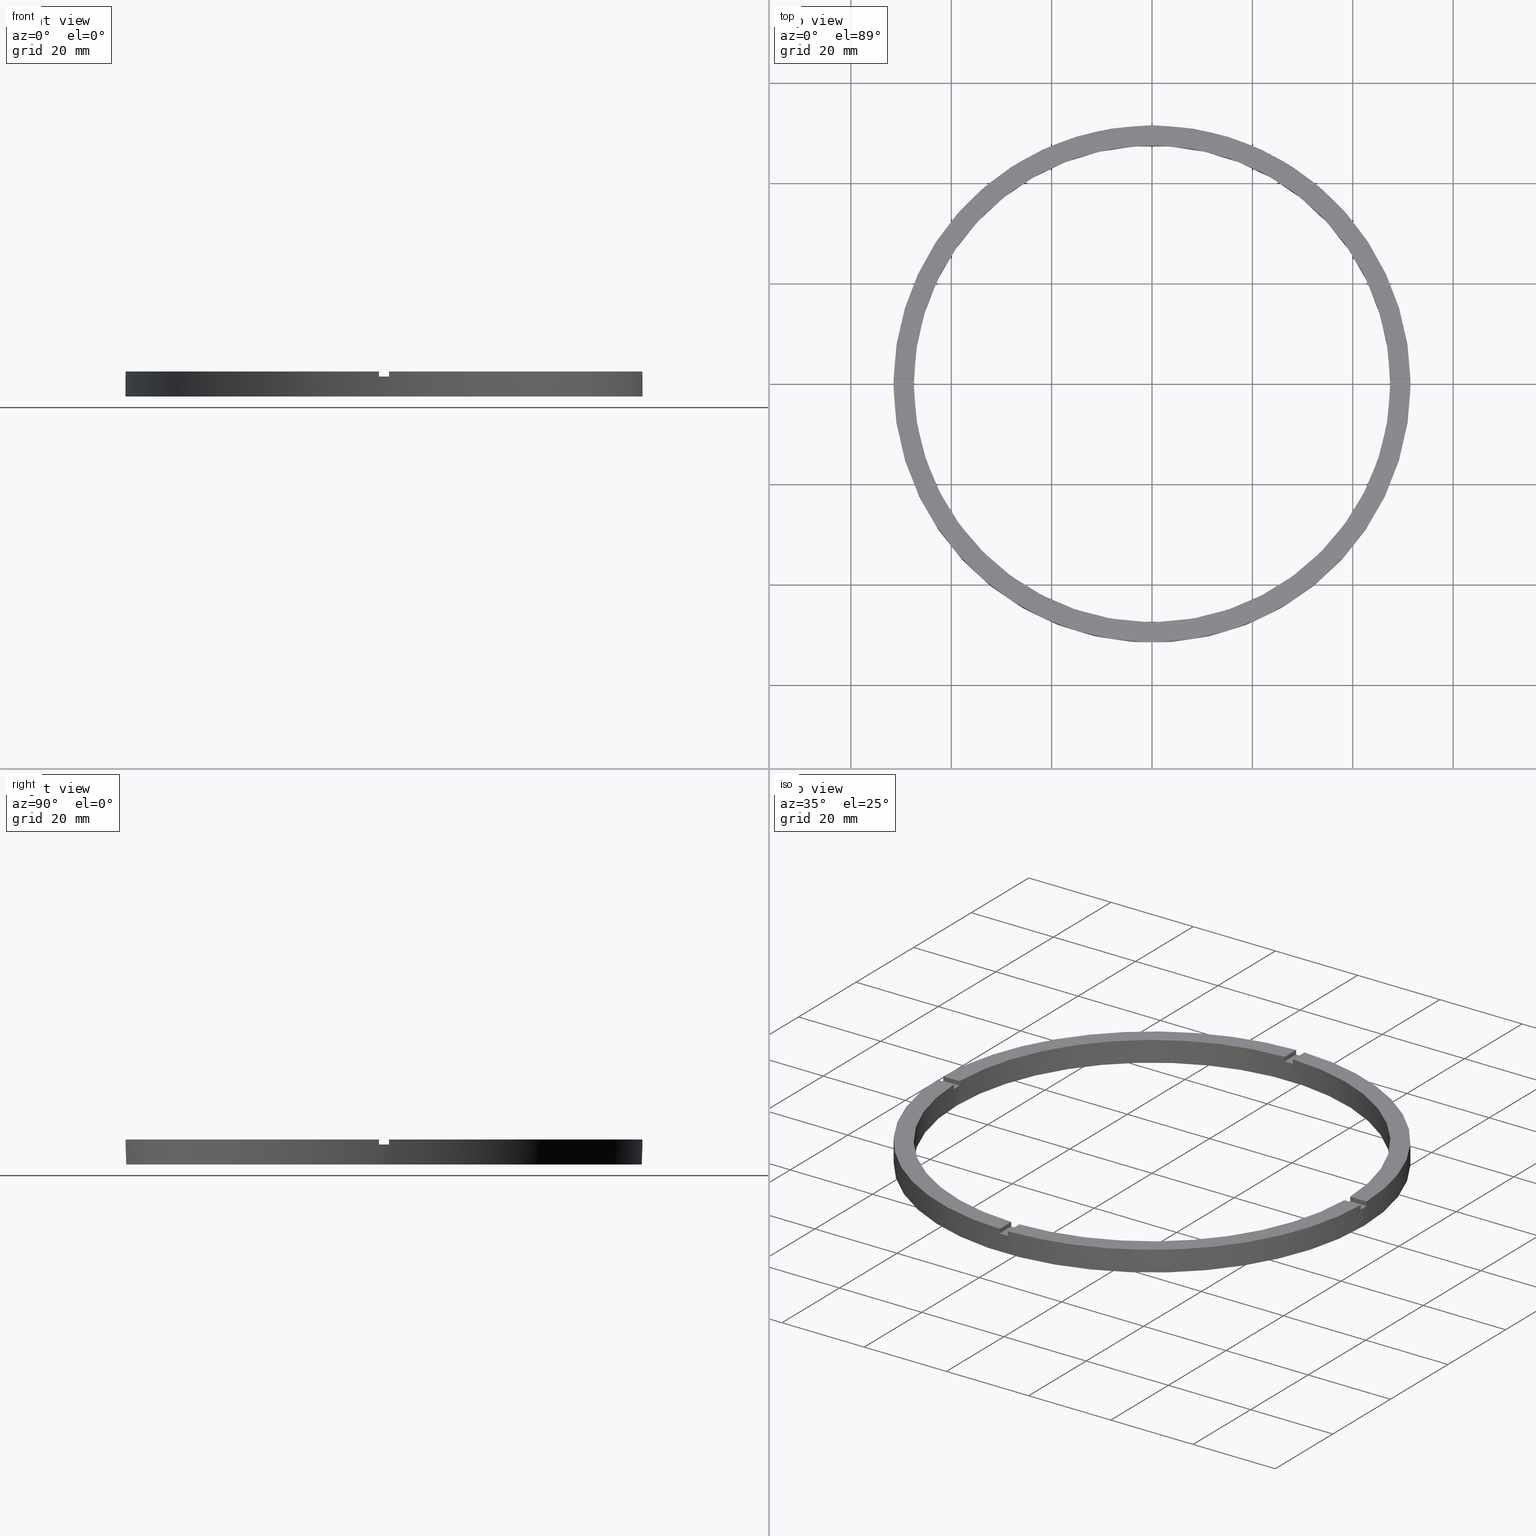
[diagram: canonical four-view strip — front | top / right | iso, engineering-drawing reading convention]
A machine part, canonical four-view strip (front | top / right | iso — engineering-drawing reading convention). The complete STEP part file that produces these views, byte-faithful:
ISO-10303-21;
HEADER;
FILE_DESCRIPTION (( 'STEP AP203' ),
    '1' );
FILE_NAME ('514211.step',
    '2024-12-26T02:48:28',
    ( 'MSI' ),
    ( '' ),
    'SwSTEP 2.0',
    'SolidWorks 2020',
    '' );
FILE_SCHEMA (( 'CONFIG_CONTROL_DESIGN' ));
ENDSEC;

DATA;
#1 = CARTESIAN_POINT ( 'NONE',  ( 0.9999999999998423483, -41.50000000000017764, 5.000000000000000000 ) ) ;
#2 = LOCAL_TIME ( 10, 48, 28.00000000000000000, #543 ) ;
#3 = DIRECTION ( 'NONE',  ( -1.000000000000000000, 0.000000000000000000, 0.000000000000000000 ) ) ;
#4 = CALENDAR_DATE ( 2024, 26, 12 ) ;
#5 = EDGE_CURVE ( 'NONE', #695, #442, #654, .T. ) ;
#6 = CARTESIAN_POINT ( 'NONE',  ( 0.000000000000000000, 0.000000000000000000, 5.000000000000000000 ) ) ;
#7 = COORDINATED_UNIVERSAL_TIME_OFFSET ( 8, 0, .AHEAD. ) ;
#8 = PERSON_AND_ORGANIZATION ( #570, #271 ) ;
#9 = ADVANCED_FACE ( 'NONE', ( #142 ), #606, .T. ) ;
#10 = DATE_AND_TIME ( #530, #275 ) ;
#11 = CARTESIAN_POINT ( 'NONE',  ( 0.000000000000000000, 0.000000000000000000, 4.000000000000000000 ) ) ;
#12 = DATE_AND_TIME ( #534, #2 ) ;
#13 = DIRECTION ( 'NONE',  ( 1.000000000000000000, 0.000000000000000000, 0.000000000000000000 ) ) ;
#14 = ORIENTED_EDGE ( 'NONE', *, *, #597, .F. ) ;
#15 = DATE_AND_TIME ( #4, #541 ) ;
#16 = DIRECTION ( 'NONE',  ( 1.000000000000000000, 0.000000000000000000, 0.000000000000000000 ) ) ;
#17 = EDGE_CURVE ( 'NONE', #560, #695, #400, .T. ) ;
#18 = EDGE_CURVE ( 'NONE', #414, #104, #659, .T. ) ;
#19 = CARTESIAN_POINT ( 'NONE',  ( -1.000000000000156319, -51.49029034682169481, 4.000000000000000000 ) ) ;
#20 = MECHANICAL_CONTEXT ( 'NONE', #240, 'mechanical' ) ;
#21 = AXIS2_PLACEMENT_3D ( 'NONE', #244, #88, #160 ) ;
#22 = CARTESIAN_POINT ( 'NONE',  ( 47.48947251760120736, -1.000000000000154987, 5.000000000000000000 ) ) ;
#23 = ORIENTED_EDGE ( 'NONE', *, *, #72, .F. ) ;
#24 = APPROVAL ( #61, 'δָ��' ) ;
#25 = APPLICATION_CONTEXT ( 'configuration controlled 3d designs of mechanical parts and assemblies' ) ;
#26 = ORIENTED_EDGE ( 'NONE', *, *, #53, .F. ) ;
#27 = EDGE_CURVE ( 'NONE', #706, #465, #662, .T. ) ;
#28 = CARTESIAN_POINT ( 'NONE',  ( 41.49999999999998579, -1.000000000000155431, 4.000000000000000000 ) ) ;
#29 = DIRECTION ( 'NONE',  ( 1.000000000000000000, 6.505213034913025371E-17, 0.000000000000000000 ) ) ;
#30 = ORIENTED_EDGE ( 'NONE', *, *, #782, .F. ) ;
#31 = ORIENTED_EDGE ( 'NONE', *, *, #251, .F. ) ;
#32 = ORIENTED_EDGE ( 'NONE', *, *, #280, .F. ) ;
#33 = AXIS2_PLACEMENT_3D ( 'NONE', #6, #621, #477 ) ;
#34 = DIRECTION ( 'NONE',  ( 1.000000000000000000, 0.000000000000000000, 0.000000000000000000 ) ) ;
#35 = DIRECTION ( 'NONE',  ( 1.000000000000000000, -0.000000000000000000, 0.000000000000000000 ) ) ;
#36 = PRODUCT_DEFINITION_FORMATION_WITH_SPECIFIED_SOURCE ( '�κ�', '', #324, .NOT_KNOWN. ) ;
#37 = ORIENTED_EDGE ( 'NONE', *, *, #468, .F. ) ;
#38 = CARTESIAN_POINT ( 'NONE',  ( -51.49029034682169481, -1.000000000000031974, 5.000000000000000000 ) ) ;
#39 = ORIENTED_EDGE ( 'NONE', *, *, #71, .F. ) ;
#40 = ORIENTED_EDGE ( 'NONE', *, *, #5, .T. ) ;
#41 = CARTESIAN_POINT ( 'NONE',  ( 0.000000000000000000, 0.000000000000000000, 0.000000000000000000 ) ) ;
#42 = ORIENTED_EDGE ( 'NONE', *, *, #394, .T. ) ;
#43 = DIRECTION ( 'NONE',  ( -1.000000000000000000, -6.505213034913025371E-17, 0.000000000000000000 ) ) ;
#44 = VERTEX_POINT ( 'NONE', #303 ) ;
#45 = DIRECTION ( 'NONE',  ( 1.000000000000000000, 0.000000000000000000, 0.000000000000000000 ) ) ;
#46 = ORIENTED_EDGE ( 'NONE', *, *, #444, .T. ) ;
#47 = DIRECTION ( 'NONE',  ( 1.000000000000000000, 0.000000000000000000, 0.000000000000000000 ) ) ;
#48 = PLANE ( 'NONE',  #59 ) ;
#49 = CARTESIAN_POINT ( 'NONE',  ( 0.9999999999998436806, -51.49029034682169481, 5.000000000000000000 ) ) ;
#50 = AXIS2_PLACEMENT_3D ( 'NONE', #415, #478, #727 ) ;
#51 = EDGE_CURVE ( 'NONE', #671, #633, #138, .T. ) ;
#52 = DIRECTION ( 'NONE',  ( -1.301042606982605074E-16, 1.000000000000000000, -0.000000000000000000 ) ) ;
#53 = EDGE_CURVE ( 'NONE', #413, #181, #411, .T. ) ;
#54 = CARTESIAN_POINT ( 'NONE',  ( 41.49999999999998579, -1.000000000000155431, 5.000000000000000000 ) ) ;
#55 = APPROVAL_ROLE ( '' ) ;
#56 = AXIS2_PLACEMENT_3D ( 'NONE', #95, #776, #642 ) ;
#57 = ORIENTED_EDGE ( 'NONE', *, *, #591, .F. ) ;
#58 = CARTESIAN_POINT ( 'NONE',  ( -51.49029034682169481, 0.9999999999999681366, 5.000000000000000000 ) ) ;
#59 = AXIS2_PLACEMENT_3D ( 'NONE', #344, #84, #392 ) ;
#60 = ADVANCED_FACE ( 'NONE', ( #154 ), #220, .F. ) ;
#61 = APPROVAL_STATUS ( 'not_yet_approved' ) ;
#62 = CC_DESIGN_PERSON_AND_ORGANIZATION_ASSIGNMENT ( #216, #91, ( #36 ) ) ;
#63 = AXIS2_PLACEMENT_3D ( 'NONE', #41, #278, #331 ) ;
#64 = CARTESIAN_POINT ( 'NONE',  ( 0.000000000000000000, 0.000000000000000000, 0.000000000000000000 ) ) ;
#65 = CARTESIAN_POINT ( 'NONE',  ( 47.50000000000000711, 5.817072295949929004E-15, 0.000000000000000000 ) ) ;
#66 = APPLICATION_PROTOCOL_DEFINITION ( 'international standard', 'config_control_design', 1994, #25 ) ;
#67 = CARTESIAN_POINT ( 'NONE',  ( 51.49029034682169481, 0.9999999999998452349, 4.000000000000000000 ) ) ;
#68 = EDGE_CURVE ( 'NONE', #190, #167, #205, .T. ) ;
#69 = DIRECTION ( 'NONE',  ( 1.000000000000000000, 6.505213034913025371E-17, 0.000000000000000000 ) ) ;
#70 = CARTESIAN_POINT ( 'NONE',  ( -41.50000000000018474, 0.9999999999999701350, 5.000000000000000000 ) ) ;
#71 = EDGE_CURVE ( 'NONE', #372, #430, #728, .T. ) ;
#72 = EDGE_CURVE ( 'NONE', #155, #683, #229, .T. ) ;
#73 = CARTESIAN_POINT ( 'NONE',  ( 0.000000000000000000, 0.000000000000000000, 5.000000000000000000 ) ) ;
#74 = DIRECTION ( 'NONE',  ( -0.000000000000000000, -0.000000000000000000, -1.000000000000000000 ) ) ;
#75 = APPROVAL_ROLE ( '' ) ;
#76 = DIRECTION ( 'NONE',  ( 0.000000000000000000, 0.000000000000000000, 1.000000000000000000 ) ) ;
#77 = DIRECTION ( 'NONE',  ( 0.000000000000000000, 0.000000000000000000, 1.000000000000000000 ) ) ;
#78 = CARTESIAN_POINT ( 'NONE',  ( 0.9999999999999731326, 41.49999999999999289, 5.000000000000000000 ) ) ;
#79 = DIRECTION ( 'NONE',  ( 0.000000000000000000, 0.000000000000000000, 1.000000000000000000 ) ) ;
#80 = EDGE_CURVE ( 'NONE', #162, #155, #462, .T. ) ;
#81 = DIRECTION ( 'NONE',  ( -1.000000000000000000, -1.951563910473907735E-16, 0.000000000000000000 ) ) ;
#82 = CARTESIAN_POINT ( 'NONE',  ( 0.000000000000000000, 0.000000000000000000, 5.000000000000000000 ) ) ;
#83 = DIRECTION ( 'NONE',  ( 0.000000000000000000, 0.000000000000000000, 1.000000000000000000 ) ) ;
#84 = DIRECTION ( 'NONE',  ( -1.951563910473907735E-16, 1.000000000000000000, 0.000000000000000000 ) ) ;
#85 = PLANE ( 'NONE',  #93 ) ;
#86 = PLANE ( 'NONE',  #334 ) ;
#87 = DIRECTION ( 'NONE',  ( 0.000000000000000000, 0.000000000000000000, 1.000000000000000000 ) ) ;
#88 = DIRECTION ( 'NONE',  ( -1.000000000000000000, 0.000000000000000000, 0.000000000000000000 ) ) ;
#89 = DIRECTION ( 'NONE',  ( 0.000000000000000000, 0.000000000000000000, 1.000000000000000000 ) ) ;
#90 = DIRECTION ( 'NONE',  ( 0.000000000000000000, 0.000000000000000000, 1.000000000000000000 ) ) ;
#91 = PERSON_AND_ORGANIZATION_ROLE ( 'design_supplier' ) ;
#92 = ADVANCED_FACE ( 'NONE', ( #232 ), #139, .T. ) ;
#93 = AXIS2_PLACEMENT_3D ( 'NONE', #163, #317, #649 ) ;
#94 = AXIS2_PLACEMENT_3D ( 'NONE', #218, #758, #29 ) ;
#95 = CARTESIAN_POINT ( 'NONE',  ( 0.9999999999998423483, -41.50000000000017764, 4.000000000000000000 ) ) ;
#96 = EDGE_CURVE ( 'NONE', #101, #430, #735, .T. ) ;
#97 = CC_DESIGN_DATE_AND_TIME_ASSIGNMENT ( #12, #467, ( #778 ) ) ;
#98 = EDGE_CURVE ( 'NONE', #162, #419, #207, .T. ) ;
#99 = VERTEX_POINT ( 'NONE', #390 ) ;
#100 = DIRECTION ( 'NONE',  ( 0.000000000000000000, 0.000000000000000000, 1.000000000000000000 ) ) ;
#101 = VERTEX_POINT ( 'NONE', #469 ) ;
#102 = CARTESIAN_POINT ( 'NONE',  ( -1.000000000000157652, -41.50000000000017764, 4.000000000000000000 ) ) ;
#103 = PERSON_AND_ORGANIZATION ( #570, #271 ) ;
#104 = VERTEX_POINT ( 'NONE', #370 ) ;
#105 = AXIS2_PLACEMENT_3D ( 'NONE', #589, #533, #582 ) ;
#106 = AXIS2_PLACEMENT_3D ( 'NONE', #572, #679, #43 ) ;
#107 = ORIENTED_EDGE ( 'NONE', *, *, #340, .T. ) ;
#108 = ORIENTED_EDGE ( 'NONE', *, *, #265, .F. ) ;
#109 = EDGE_LOOP ( 'NONE', ( #319, #107, #684, #431, #655, #152, #426, #204, #682, #281, #388, #196 ) ) ;
#110 = CARTESIAN_POINT ( 'NONE',  ( 51.49029034682169481, 0.9999999999998452349, 5.000000000000000000 ) ) ;
#111 = CC_DESIGN_APPROVAL ( #359, ( #778 ) ) ;
#112 = ORIENTED_EDGE ( 'NONE', *, *, #750, .T. ) ;
#113 = CALENDAR_DATE ( 2024, 26, 12 ) ;
#114 = ORIENTED_EDGE ( 'NONE', *, *, #773, .F. ) ;
#115 = APPROVAL_STATUS ( 'not_yet_approved' ) ;
#116 = VERTEX_POINT ( 'NONE', #584 ) ;
#117 = DATE_AND_TIME ( #113, #644 ) ;
#118 = VERTEX_POINT ( 'NONE', #618 ) ;
#119 = CARTESIAN_POINT ( 'NONE',  ( -47.50000000000000711, 0.000000000000000000, 5.000000000000000000 ) ) ;
#120 = CARTESIAN_POINT ( 'NONE',  ( -47.50000000000000711, 0.000000000000000000, 0.000000000000000000 ) ) ;
#121 = COORDINATED_UNIVERSAL_TIME_OFFSET ( 8, 0, .AHEAD. ) ;
#122 = ORIENTED_EDGE ( 'NONE', *, *, #153, .T. ) ;
#123 = CALENDAR_DATE ( 2024, 26, 12 ) ;
#124 = ORIENTED_EDGE ( 'NONE', *, *, #676, .T. ) ;
#125 = LOCAL_TIME ( 10, 48, 28.00000000000000000, #364 ) ;
#126 = ORIENTED_EDGE ( 'NONE', *, *, #444, .F. ) ;
#127 = ORIENTED_EDGE ( 'NONE', *, *, #468, .T. ) ;
#128 = ORIENTED_EDGE ( 'NONE', *, *, #507, .T. ) ;
#129 = EDGE_LOOP ( 'NONE', ( #445, #428, #159, #182, #692, #686 ) ) ;
#130 = CARTESIAN_POINT ( 'NONE',  ( -1.000000000000156986, -47.48947251760120736, 4.000000000000000000 ) ) ;
#131 = UNCERTAINTY_MEASURE_WITH_UNIT (LENGTH_MEASURE( 1.000000000000000082E-05 ), #544, 'distance_accuracy_value', 'NONE');
#132 = DIRECTION ( 'NONE',  ( 0.000000000000000000, 1.000000000000000000, 0.000000000000000000 ) ) ;
#133 = ORIENTED_EDGE ( 'NONE', *, *, #265, .T. ) ;
#134 = VECTOR ( 'NONE', #660, 1000.000000000000000 ) ;
#135 = EDGE_CURVE ( 'NONE', #44, #571, #464, .T. ) ;
#136 = ORIENTED_EDGE ( 'NONE', *, *, #215, .T. ) ;
#137 = DIRECTION ( 'NONE',  ( 1.000000000000000000, 0.000000000000000000, -0.000000000000000000 ) ) ;
#138 = CIRCLE ( 'NONE', #499, 51.50000000000000000 ) ;
#139 = PLANE ( 'NONE',  #600 ) ;
#140 = PLANE ( 'NONE',  #106 ) ;
#141 = ORIENTED_EDGE ( 'NONE', *, *, #680, .T. ) ;
#142 = FACE_OUTER_BOUND ( 'NONE', #191, .T. ) ;
#143 = PRODUCT_RELATED_PRODUCT_CATEGORY ( 'detail', '', ( #324 ) ) ;
#144 = ORIENTED_EDGE ( 'NONE', *, *, #398, .T. ) ;
#145 = CARTESIAN_POINT ( 'NONE',  ( -51.50000000000000000, 0.000000000000000000, 4.000000000000000000 ) ) ;
#146 = AXIS2_PLACEMENT_3D ( 'NONE', #694, #76, #294 ) ;
#147 = ORIENTED_EDGE ( 'NONE', *, *, #602, .T. ) ;
#148 = AXIS2_PLACEMENT_3D ( 'NONE', #756, #320, #528 ) ;
#149 = DIRECTION ( 'NONE',  ( 0.000000000000000000, 0.000000000000000000, 1.000000000000000000 ) ) ;
#150 = CARTESIAN_POINT ( 'NONE',  ( -51.50000000000000000, 0.000000000000000000, 5.000000000000000000 ) ) ;
#151 = ORIENTED_EDGE ( 'NONE', *, *, #451, .F. ) ;
#152 = ORIENTED_EDGE ( 'NONE', *, *, #284, .T. ) ;
#153 = EDGE_CURVE ( 'NONE', #372, #725, #729, .T. ) ;
#154 = FACE_OUTER_BOUND ( 'NONE', #653, .T. ) ;
#155 = VERTEX_POINT ( 'NONE', #719 ) ;
#156 = CARTESIAN_POINT ( 'NONE',  ( 0.000000000000000000, 0.000000000000000000, 4.000000000000000000 ) ) ;
#157 = ORIENTED_EDGE ( 'NONE', *, *, #280, .T. ) ;
#158 = EDGE_CURVE ( 'NONE', #675, #689, #498, .T. ) ;
#159 = ORIENTED_EDGE ( 'NONE', *, *, #408, .T. ) ;
#160 = DIRECTION ( 'NONE',  ( 0.000000000000000000, 0.000000000000000000, 1.000000000000000000 ) ) ;
#161 = CARTESIAN_POINT ( 'NONE',  ( -1.000000000000156319, -51.49029034682169481, 5.000000000000000000 ) ) ;
#162 = VERTEX_POINT ( 'NONE', #130 ) ;
#163 = CARTESIAN_POINT ( 'NONE',  ( 0.000000000000000000, 0.000000000000000000, 0.000000000000000000 ) ) ;
#164 = VERTEX_POINT ( 'NONE', #285 ) ;
#165 = ORIENTED_EDGE ( 'NONE', *, *, #531, .F. ) ;
#166 = CARTESIAN_POINT ( 'NONE',  ( -51.50000000000000000, 0.000000000000000000, 0.000000000000000000 ) ) ;
#167 = VERTEX_POINT ( 'NONE', #328 ) ;
#168 = ORIENTED_EDGE ( 'NONE', *, *, #602, .F. ) ;
#169 = CARTESIAN_POINT ( 'NONE',  ( 0.000000000000000000, 0.000000000000000000, 0.000000000000000000 ) ) ;
#170 = EDGE_LOOP ( 'NONE', ( #628, #641, #421, #379 ) ) ;
#171 = ORIENTED_EDGE ( 'NONE', *, *, #340, .F. ) ;
#172 = DIRECTION ( 'NONE',  ( 1.000000000000000000, 6.505213034913025371E-17, 0.000000000000000000 ) ) ;
#173 = ORIENTED_EDGE ( 'NONE', *, *, #591, .T. ) ;
#174 = APPROVAL ( #405, 'δָ��' ) ;
#175 = ORIENTED_EDGE ( 'NONE', *, *, #567, .F. ) ;
#176 = ORIENTED_EDGE ( 'NONE', *, *, #333, .T. ) ;
#177 = ADVANCED_FACE ( 'NONE', ( #221 ), #269, .F. ) ;
#178 = EDGE_LOOP ( 'NONE', ( #171, #31, #391, #652, #176, #165, #299, #304, #147, #456, #311, #700 ) ) ;
#179 = DIRECTION ( 'NONE',  ( 1.000000000000000000, 0.000000000000000000, -0.000000000000000000 ) ) ;
#180 = EDGE_LOOP ( 'NONE', ( #186, #369, #114, #122 ) ) ;
#181 = VERTEX_POINT ( 'NONE', #615 ) ;
#182 = ORIENTED_EDGE ( 'NONE', *, *, #18, .F. ) ;
#183 = ORIENTED_EDGE ( 'NONE', *, *, #201, .T. ) ;
#184 = ORIENTED_EDGE ( 'NONE', *, *, #68, .F. ) ;
#185 = LINE ( 'NONE', #399, #197 ) ;
#186 = ORIENTED_EDGE ( 'NONE', *, *, #490, .F. ) ;
#187 = ORIENTED_EDGE ( 'NONE', *, *, #558, .T. ) ;
#188 = LINE ( 'NONE', #78, #200 ) ;
#189 = VECTOR ( 'NONE', #576, 1000.000000000000000 ) ;
#190 = VERTEX_POINT ( 'NONE', #313 ) ;
#191 = EDGE_LOOP ( 'NONE', ( #703, #666, #128, #193, #409, #127 ) ) ;
#192 = LINE ( 'NONE', #711, #702 ) ;
#193 = ORIENTED_EDGE ( 'NONE', *, *, #247, .F. ) ;
#194 = FACE_OUTER_BOUND ( 'NONE', #650, .T. ) ;
#195 = ORIENTED_EDGE ( 'NONE', *, *, #17, .T. ) ;
#196 = ORIENTED_EDGE ( 'NONE', *, *, #71, .T. ) ;
#197 = VECTOR ( 'NONE', #353, 1000.000000000000000 ) ;
#198 = ADVANCED_FACE ( 'NONE', ( #455 ), #305, .F. ) ;
#199 = DIRECTION ( 'NONE',  ( 1.000000000000000000, 0.000000000000000000, 0.000000000000000000 ) ) ;
#200 = VECTOR ( 'NONE', #132, 1000.000000000000000 ) ;
#201 = EDGE_CURVE ( 'NONE', #385, #434, #230, .T. ) ;
#202 = ORIENTED_EDGE ( 'NONE', *, *, #53, .T. ) ;
#203 = LINE ( 'NONE', #529, #712 ) ;
#204 = ORIENTED_EDGE ( 'NONE', *, *, #354, .T. ) ;
#205 = LINE ( 'NONE', #282, #447 ) ;
#206 = VECTOR ( 'NONE', #474, 1000.000000000000000 ) ;
#207 = LINE ( 'NONE', #235, #206 ) ;
#208 = CARTESIAN_POINT ( 'NONE',  ( -47.48947251760120736, -1.000000000000031308, 5.000000000000000000 ) ) ;
#209 = VECTOR ( 'NONE', #550, 1000.000000000000000 ) ;
#210 = AXIS2_PLACEMENT_3D ( 'NONE', #377, #470, #260 ) ;
#211 = AXIS2_PLACEMENT_3D ( 'NONE', #593, #723, #179 ) ;
#212 = CARTESIAN_POINT ( 'NONE',  ( 47.50000000000000711, 5.817072295949929004E-15, 4.000000000000000000 ) ) ;
#213 = DIRECTION ( 'NONE',  ( -0.000000000000000000, -0.000000000000000000, -1.000000000000000000 ) ) ;
#214 = CC_DESIGN_PERSON_AND_ORGANIZATION_ASSIGNMENT ( #485, #731, ( #746 ) ) ;
#215 = EDGE_CURVE ( 'NONE', #116, #99, #737, .T. ) ;
#216 = PERSON_AND_ORGANIZATION ( #570, #271 ) ;
#217 = DESIGN_CONTEXT ( 'detailed design', #25, 'design' ) ;
#218 = CARTESIAN_POINT ( 'NONE',  ( 41.49999999999998579, -1.000000000000155431, 4.000000000000000000 ) ) ;
#219 = AXIS2_PLACEMENT_3D ( 'NONE', #347, #83, #395 ) ;
#220 = CYLINDRICAL_SURFACE ( 'NONE', #257, 47.50000000000000711 ) ;
#221 = FACE_OUTER_BOUND ( 'NONE', #301, .T. ) ;
#222 = DIRECTION ( 'NONE',  ( 0.000000000000000000, 0.000000000000000000, 1.000000000000000000 ) ) ;
#223 = VECTOR ( 'NONE', #245, 1000.000000000000000 ) ;
#224 = CARTESIAN_POINT ( 'NONE',  ( -47.48947251760120736, 0.9999999999999688027, 5.000000000000000000 ) ) ;
#225 = CARTESIAN_POINT ( 'NONE',  ( -1.000000000000026867, 47.48947251760120736, 5.000000000000000000 ) ) ;
#226 = LINE ( 'NONE', #58, #491 ) ;
#227 = FACE_OUTER_BOUND ( 'NONE', #417, .T. ) ;
#228 = CARTESIAN_POINT ( 'NONE',  ( 0.000000000000000000, 0.000000000000000000, 0.000000000000000000 ) ) ;
#229 = LINE ( 'NONE', #384, #458 ) ;
#230 = CIRCLE ( 'NONE', #288, 47.50000000000000711 ) ;
#231 = CARTESIAN_POINT ( 'NONE',  ( 0.000000000000000000, 0.000000000000000000, 4.000000000000000000 ) ) ;
#232 = FACE_OUTER_BOUND ( 'NONE', #170, .T. ) ;
#233 = VECTOR ( 'NONE', #149, 1000.000000000000000 ) ;
#234 = LINE ( 'NONE', #522, #502 ) ;
#235 = CARTESIAN_POINT ( 'NONE',  ( -1.000000000000157652, -41.50000000000017764, 4.000000000000000000 ) ) ;
#236 = VECTOR ( 'NONE', #339, 1000.000000000000000 ) ;
#237 = DIRECTION ( 'NONE',  ( 0.000000000000000000, 0.000000000000000000, 1.000000000000000000 ) ) ;
#238 = CIRCLE ( 'NONE', #289, 47.50000000000000711 ) ;
#239 = VECTOR ( 'NONE', #715, 1000.000000000000000 ) ;
#240 = APPLICATION_CONTEXT ( 'configuration controlled 3d designs of mechanical parts and assemblies' ) ;
#241 = AXIS2_PLACEMENT_3D ( 'NONE', #272, #386, #13 ) ;
#242 = CARTESIAN_POINT ( 'NONE',  ( 0.000000000000000000, 0.000000000000000000, 5.000000000000000000 ) ) ;
#243 = LINE ( 'NONE', #70, #515 ) ;
#244 = CARTESIAN_POINT ( 'NONE',  ( -1.000000000000026867, 41.49999999999999289, 4.000000000000000000 ) ) ;
#245 = DIRECTION ( 'NONE',  ( 0.000000000000000000, 0.000000000000000000, 1.000000000000000000 ) ) ;
#246 = LINE ( 'NONE', #599, #239 ) ;
#247 = EDGE_CURVE ( 'NONE', #695, #453, #500, .T. ) ;
#248 = VECTOR ( 'NONE', #540, 1000.000000000000000 ) ;
#249 = CARTESIAN_POINT ( 'NONE',  ( 0.000000000000000000, 0.000000000000000000, 4.000000000000000000 ) ) ;
#250 = LINE ( 'NONE', #382, #772 ) ;
#251 = EDGE_CURVE ( 'NONE', #368, #101, #466, .T. ) ;
#252 = DIRECTION ( 'NONE',  ( 0.000000000000000000, 0.000000000000000000, 1.000000000000000000 ) ) ;
#253 = DIRECTION ( 'NONE',  ( -1.000000000000000000, 0.000000000000000000, 0.000000000000000000 ) ) ;
#254 = PLANE ( 'NONE',  #740 ) ;
#255 = LINE ( 'NONE', #22, #759 ) ;
#256 = CIRCLE ( 'NONE', #401, 51.50000000000000000 ) ;
#257 = AXIS2_PLACEMENT_3D ( 'NONE', #242, #766, #3 ) ;
#258 = PERSON_AND_ORGANIZATION_ROLE ( 'creator' ) ;
#259 = VECTOR ( 'NONE', #52, 1000.000000000000000 ) ;
#260 = DIRECTION ( 'NONE',  ( 1.000000000000000000, 0.000000000000000000, 0.000000000000000000 ) ) ;
#261 = CIRCLE ( 'NONE', #346, 47.50000000000000711 ) ;
#262 = CIRCLE ( 'NONE', #583, 51.50000000000000000 ) ;
#263 = ADVANCED_FACE ( 'NONE', ( #480, #461 ), #85, .F. ) ;
#264 = DIRECTION ( 'NONE',  ( 1.000000000000000000, 0.000000000000000000, 0.000000000000000000 ) ) ;
#265 = EDGE_CURVE ( 'NONE', #635, #657, #714, .T. ) ;
#266 = VECTOR ( 'NONE', #473, 1000.000000000000000 ) ;
#267 = LINE ( 'NONE', #537, #521 ) ;
#268 = FACE_OUTER_BOUND ( 'NONE', #446, .T. ) ;
#269 = PLANE ( 'NONE',  #56 ) ;
#270 = CIRCLE ( 'NONE', #318, 47.50000000000000711 ) ;
#271 = ORGANIZATION ( 'δָ��', 'δָ��', '' ) ;
#272 = CARTESIAN_POINT ( 'NONE',  ( 0.000000000000000000, 0.000000000000000000, 4.000000000000000000 ) ) ;
#273 = COORDINATED_UNIVERSAL_TIME_OFFSET ( 8, 0, .AHEAD. ) ;
#274 = APPROVAL_PERSON_ORGANIZATION ( #538, #359, #75 ) ;
#275 = LOCAL_TIME ( 10, 48, 28.00000000000000000, #7 ) ;
#276 = PERSON_AND_ORGANIZATION ( #570, #271 ) ;
#277 = PERSON_AND_ORGANIZATION ( #570, #271 ) ;
#278 = DIRECTION ( 'NONE',  ( 0.000000000000000000, 0.000000000000000000, 1.000000000000000000 ) ) ;
#279 = DIRECTION ( 'NONE',  ( 1.000000000000000000, 0.000000000000000000, 0.000000000000000000 ) ) ;
#280 = EDGE_CURVE ( 'NONE', #442, #624, #494, .T. ) ;
#281 = ORIENTED_EDGE ( 'NONE', *, *, #699, .T. ) ;
#282 = CARTESIAN_POINT ( 'NONE',  ( -41.50000000000018474, 0.9999999999999701350, 4.000000000000000000 ) ) ;
#283 = DIRECTION ( 'NONE',  ( -1.000000000000000000, -6.505213034913025371E-17, -0.000000000000000000 ) ) ;
#284 = EDGE_CURVE ( 'NONE', #167, #690, #226, .T. ) ;
#285 = CARTESIAN_POINT ( 'NONE',  ( 47.48947251760121446, 0.9999999999998450129, 5.000000000000000000 ) ) ;
#286 = CARTESIAN_POINT ( 'NONE',  ( 0.000000000000000000, 0.000000000000000000, 4.000000000000000000 ) ) ;
#287 = DIRECTION ( 'NONE',  ( -0.000000000000000000, -0.000000000000000000, -1.000000000000000000 ) ) ;
#288 = AXIS2_PLACEMENT_3D ( 'NONE', #634, #350, #264 ) ;
#289 = AXIS2_PLACEMENT_3D ( 'NONE', #619, #332, #607 ) ;
#290 = PERSON_AND_ORGANIZATION_ROLE ( 'creator' ) ;
#291 = CC_DESIGN_PERSON_AND_ORGANIZATION_ASSIGNMENT ( #277, #290, ( #778 ) ) ;
#292 = DIRECTION ( 'NONE',  ( -0.000000000000000000, -0.000000000000000000, -1.000000000000000000 ) ) ;
#293 = CARTESIAN_POINT ( 'NONE',  ( 0.000000000000000000, 0.000000000000000000, 5.000000000000000000 ) ) ;
#294 = DIRECTION ( 'NONE',  ( 1.000000000000000000, 0.000000000000000000, 0.000000000000000000 ) ) ;
#295 = DIRECTION ( 'NONE',  ( 1.000000000000000000, 0.000000000000000000, -0.000000000000000000 ) ) ;
#296 = ORIENTED_EDGE ( 'NONE', *, *, #327, .F. ) ;
#297 = ORIENTED_EDGE ( 'NONE', *, *, #284, .F. ) ;
#298 = CARTESIAN_POINT ( 'NONE',  ( 0.9999999999999731326, 51.49029034682169481, 5.000000000000000000 ) ) ;
#299 = ORIENTED_EDGE ( 'NONE', *, *, #361, .T. ) ;
#300 = DIRECTION ( 'NONE',  ( 0.000000000000000000, 0.000000000000000000, 1.000000000000000000 ) ) ;
#301 = EDGE_LOOP ( 'NONE', ( #124, #437, #14, #658 ) ) ;
#302 = PLANE ( 'NONE',  #211 ) ;
#303 = CARTESIAN_POINT ( 'NONE',  ( 0.9999999999998436806, -51.49029034682169481, 5.000000000000000000 ) ) ;
#304 = ORIENTED_EDGE ( 'NONE', *, *, #535, .F. ) ;
#305 = PLANE ( 'NONE',  #435 ) ;
#306 = ORIENTED_EDGE ( 'NONE', *, *, #51, .F. ) ;
#307 = ADVANCED_FACE ( 'NONE', ( #194 ), #316, .T. ) ;
#308 = DIRECTION ( 'NONE',  ( 0.000000000000000000, -0.000000000000000000, 1.000000000000000000 ) ) ;
#309 = AXIS2_PLACEMENT_3D ( 'NONE', #574, #87, #365 ) ;
#310 = EDGE_LOOP ( 'NONE', ( #46, #701, #454, #716 ) ) ;
#311 = ORIENTED_EDGE ( 'NONE', *, *, #587, .T. ) ;
#312 = ORIENTED_EDGE ( 'NONE', *, *, #545, .T. ) ;
#313 = CARTESIAN_POINT ( 'NONE',  ( -47.48947251760120736, 0.9999999999999688027, 4.000000000000000000 ) ) ;
#314 = EDGE_CURVE ( 'NONE', #190, #434, #717, .T. ) ;
#315 = ORIENTED_EDGE ( 'NONE', *, *, #507, .F. ) ;
#316 = PLANE ( 'NONE',  #241 ) ;
#317 = DIRECTION ( 'NONE',  ( 0.000000000000000000, 0.000000000000000000, 1.000000000000000000 ) ) ;
#318 = AXIS2_PLACEMENT_3D ( 'NONE', #249, #590, #47 ) ;
#319 = ORIENTED_EDGE ( 'NONE', *, *, #96, .F. ) ;
#320 = DIRECTION ( 'NONE',  ( 0.000000000000000000, 0.000000000000000000, 1.000000000000000000 ) ) ;
#321 = ORIENTED_EDGE ( 'NONE', *, *, #545, .F. ) ;
#322 = CARTESIAN_POINT ( 'NONE',  ( -1.000000000000156319, -51.49029034682169481, 5.000000000000000000 ) ) ;
#323 = CARTESIAN_POINT ( 'NONE',  ( 47.48947251760121446, 0.9999999999998450129, 4.000000000000000000 ) ) ;
#324 = PRODUCT ( '514211', '514211', '', ( #20 ) ) ;
#325 = CARTESIAN_POINT ( 'NONE',  ( -1.000000000000156986, -47.48947251760120736, 5.000000000000000000 ) ) ;
#326 = DIRECTION ( 'NONE',  ( 0.000000000000000000, 0.000000000000000000, 1.000000000000000000 ) ) ;
#327 = EDGE_CURVE ( 'NONE', #116, #706, #745, .T. ) ;
#328 = CARTESIAN_POINT ( 'NONE',  ( -51.49029034682169481, 0.9999999999999681366, 4.000000000000000000 ) ) ;
#329 = DIRECTION ( 'NONE',  ( 0.000000000000000000, 0.000000000000000000, -1.000000000000000000 ) ) ;
#330 = ADVANCED_FACE ( 'NONE', ( #730 ), #254, .T. ) ;
#331 = DIRECTION ( 'NONE',  ( 1.000000000000000000, 0.000000000000000000, 0.000000000000000000 ) ) ;
#332 = DIRECTION ( 'NONE',  ( 0.000000000000000000, 0.000000000000000000, 1.000000000000000000 ) ) ;
#333 = EDGE_CURVE ( 'NONE', #44, #669, #483, .T. ) ;
#334 = AXIS2_PLACEMENT_3D ( 'NONE', #156, #79, #137 ) ;
#335 = ADVANCED_FACE ( 'NONE', ( #443 ), #302, .T. ) ;
#336 = DIRECTION ( 'NONE',  ( 1.000000000000000000, 0.000000000000000000, 0.000000000000000000 ) ) ;
#337 = CC_DESIGN_DATE_AND_TIME_ASSIGNMENT ( #117, #596, ( #746 ) ) ;
#338 = CARTESIAN_POINT ( 'NONE',  ( 0.000000000000000000, 0.000000000000000000, 4.000000000000000000 ) ) ;
#339 = DIRECTION ( 'NONE',  ( -1.301042606982605074E-16, 1.000000000000000000, -0.000000000000000000 ) ) ;
#340 = EDGE_CURVE ( 'NONE', #101, #633, #185, .T. ) ;
#341 = DIRECTION ( 'NONE',  ( 1.000000000000000000, 1.951563910473907735E-16, 0.000000000000000000 ) ) ;
#342 = CARTESIAN_POINT ( 'NONE',  ( -1.000000000000026867, 51.49029034682169481, 5.000000000000000000 ) ) ;
#343 = DIRECTION ( 'NONE',  ( 1.000000000000000000, 0.000000000000000000, 0.000000000000000000 ) ) ;
#344 = CARTESIAN_POINT ( 'NONE',  ( -41.50000000000018474, 0.9999999999999701350, 4.000000000000000000 ) ) ;
#345 = CARTESIAN_POINT ( 'NONE',  ( 51.49029034682169481, -1.000000000000154765, 4.000000000000000000 ) ) ;
#346 = AXIS2_PLACEMENT_3D ( 'NONE', #228, #770, #336 ) ;
#347 = CARTESIAN_POINT ( 'NONE',  ( 0.000000000000000000, 0.000000000000000000, 5.000000000000000000 ) ) ;
#348 = CARTESIAN_POINT ( 'NONE',  ( 0.9999999999999731326, 41.49999999999999289, 4.000000000000000000 ) ) ;
#349 = DIRECTION ( 'NONE',  ( 1.000000000000000000, 0.000000000000000000, 0.000000000000000000 ) ) ;
#350 = DIRECTION ( 'NONE',  ( 0.000000000000000000, 0.000000000000000000, 1.000000000000000000 ) ) ;
#351 = AXIS2_PLACEMENT_3D ( 'NONE', #73, #300, #343 ) ;
#352 = EDGE_CURVE ( 'NONE', #713, #690, #484, .T. ) ;
#353 = DIRECTION ( 'NONE',  ( -0.000000000000000000, -0.000000000000000000, -1.000000000000000000 ) ) ;
#354 = EDGE_CURVE ( 'NONE', #713, #465, #192, .T. ) ;
#355 = DIRECTION ( 'NONE',  ( -1.000000000000000000, -1.301042606982605074E-16, 0.000000000000000000 ) ) ;
#356 = AXIS2_PLACEMENT_3D ( 'NONE', #546, #222, #34 ) ;
#357 = AXIS2_PLACEMENT_3D ( 'NONE', #547, #697, #476 ) ;
#358 = DIRECTION ( 'NONE',  ( 1.301042606982605074E-16, -1.000000000000000000, 0.000000000000000000 ) ) ;
#359 = APPROVAL ( #115, 'δָ��' ) ;
#360 = SHAPE_DEFINITION_REPRESENTATION ( #638, #423 ) ;
#361 = EDGE_CURVE ( 'NONE', #419, #683, #738, .T. ) ;
#362 = CARTESIAN_POINT ( 'NONE',  ( -1.000000000000026867, 51.49029034682169481, 4.000000000000000000 ) ) ;
#363 = CARTESIAN_POINT ( 'NONE',  ( 0.9999999999999731326, 47.48947251760120736, 5.000000000000000000 ) ) ;
#364 = COORDINATED_UNIVERSAL_TIME_OFFSET ( 8, 0, .AHEAD. ) ;
#365 = DIRECTION ( 'NONE',  ( 1.000000000000000000, 0.000000000000000000, 0.000000000000000000 ) ) ;
#366 = CARTESIAN_POINT ( 'NONE',  ( 0.9999999999998430145, -47.48947251760121446, 4.000000000000000000 ) ) ;
#367 = ORIENTED_EDGE ( 'NONE', *, *, #314, .T. ) ;
#368 = VERTEX_POINT ( 'NONE', #345 ) ;
#369 = ORIENTED_EDGE ( 'NONE', *, *, #598, .F. ) ;
#370 = CARTESIAN_POINT ( 'NONE',  ( -47.48947251760120736, -1.000000000000031308, 4.000000000000000000 ) ) ;
#371 = DIRECTION ( 'NONE',  ( -0.000000000000000000, -0.000000000000000000, -1.000000000000000000 ) ) ;
#372 = VERTEX_POINT ( 'NONE', #110 ) ;
#373 = EDGE_LOOP ( 'NONE', ( #23, #402, #108, #672 ) ) ;
#374 = DIRECTION ( 'NONE',  ( 1.000000000000000000, 0.000000000000000000, 0.000000000000000000 ) ) ;
#375 = EDGE_LOOP ( 'NONE', ( #563, #157 ) ) ;
#376 = DIRECTION ( 'NONE',  ( 1.000000000000000000, 0.000000000000000000, -0.000000000000000000 ) ) ;
#377 = CARTESIAN_POINT ( 'NONE',  ( 0.000000000000000000, 0.000000000000000000, 4.000000000000000000 ) ) ;
#378 = DIRECTION ( 'NONE',  ( -0.000000000000000000, -0.000000000000000000, -1.000000000000000000 ) ) ;
#379 = ORIENTED_EDGE ( 'NONE', *, *, #327, .T. ) ;
#380 = ORIENTED_EDGE ( 'NONE', *, *, #645, .T. ) ;
#381 = ORIENTED_EDGE ( 'NONE', *, *, #408, .F. ) ;
#382 = CARTESIAN_POINT ( 'NONE',  ( 41.49999999999998579, 0.9999999999998445688, 5.000000000000000000 ) ) ;
#383 = ORIENTED_EDGE ( 'NONE', *, *, #676, .F. ) ;
#384 = CARTESIAN_POINT ( 'NONE',  ( -1.000000000000157652, -41.50000000000017764, 5.000000000000000000 ) ) ;
#385 = VERTEX_POINT ( 'NONE', #661 ) ;
#386 = DIRECTION ( 'NONE',  ( -0.000000000000000000, 0.000000000000000000, 1.000000000000000000 ) ) ;
#387 = AXIS2_PLACEMENT_3D ( 'NONE', #338, #237, #612 ) ;
#388 = ORIENTED_EDGE ( 'NONE', *, *, #153, .F. ) ;
#389 = DIRECTION ( 'NONE',  ( -0.000000000000000000, -0.000000000000000000, -1.000000000000000000 ) ) ;
#390 = CARTESIAN_POINT ( 'NONE',  ( -1.000000000000026867, 47.48947251760120736, 4.000000000000000000 ) ) ;
#391 = ORIENTED_EDGE ( 'NONE', *, *, #782, .T. ) ;
#392 = DIRECTION ( 'NONE',  ( -1.000000000000000000, -1.951563910473907735E-16, 0.000000000000000000 ) ) ;
#393 = ORIENTED_EDGE ( 'NONE', *, *, #361, .F. ) ;
#394 = EDGE_CURVE ( 'NONE', #657, #155, #749, .T. ) ;
#395 = DIRECTION ( 'NONE',  ( 1.000000000000000000, 0.000000000000000000, -0.000000000000000000 ) ) ;
#396 = ORIENTED_EDGE ( 'NONE', *, *, #765, .F. ) ;
#397 = DIRECTION ( 'NONE',  ( 1.000000000000000000, 0.000000000000000000, 0.000000000000000000 ) ) ;
#398 = EDGE_CURVE ( 'NONE', #190, #414, #438, .T. ) ;
#399 = CARTESIAN_POINT ( 'NONE',  ( 51.50000000000000000, 6.306931015608868807E-15, 5.000000000000000000 ) ) ;
#400 = CIRCLE ( 'NONE', #387, 47.50000000000000711 ) ;
#401 = AXIS2_PLACEMENT_3D ( 'NONE', #471, #524, #581 ) ;
#402 = ORIENTED_EDGE ( 'NONE', *, *, #394, .F. ) ;
#403 = CARTESIAN_POINT ( 'NONE',  ( 0.000000000000000000, 0.000000000000000000, 4.000000000000000000 ) ) ;
#404 = ADVANCED_FACE ( 'NONE', ( #457 ), #743, .F. ) ;
#405 = APPROVAL_STATUS ( 'not_yet_approved' ) ;
#406 = EDGE_LOOP ( 'NONE', ( #133, #112, #381, #168 ) ) ;
#407 = ORIENTED_EDGE ( 'NONE', *, *, #80, .F. ) ;
#408 = EDGE_CURVE ( 'NONE', #689, #104, #726, .T. ) ;
#409 = ORIENTED_EDGE ( 'NONE', *, *, #17, .F. ) ;
#410 = ORIENTED_EDGE ( 'NONE', *, *, #98, .T. ) ;
#411 = CIRCLE ( 'NONE', #146, 47.50000000000000711 ) ;
#412 = ORIENTED_EDGE ( 'NONE', *, *, #558, .F. ) ;
#413 = VERTEX_POINT ( 'NONE', #678 ) ;
#414 = VERTEX_POINT ( 'NONE', #667 ) ;
#415 = CARTESIAN_POINT ( 'NONE',  ( 0.000000000000000000, 0.000000000000000000, 4.000000000000000000 ) ) ;
#416 = ORIENTED_EDGE ( 'NONE', *, *, #680, .F. ) ;
#417 = EDGE_LOOP ( 'NONE', ( #575, #312, #315, #39 ) ) ;
#418 = ORIENTED_EDGE ( 'NONE', *, *, #314, .F. ) ;
#419 = VERTEX_POINT ( 'NONE', #19 ) ;
#420 = DIRECTION ( 'NONE',  ( -0.000000000000000000, -0.000000000000000000, -1.000000000000000000 ) ) ;
#421 = ORIENTED_EDGE ( 'NONE', *, *, #215, .F. ) ;
#422 = EDGE_LOOP ( 'NONE', ( #306, #656 ) ) ;
#423 = ADVANCED_BREP_SHAPE_REPRESENTATION ( '514211', ( #732, #696 ), #565 ) ;
#424 = ORIENTED_EDGE ( 'NONE', *, *, #531, .T. ) ;
#425 = ORIENTED_EDGE ( 'NONE', *, *, #567, .T. ) ;
#426 = ORIENTED_EDGE ( 'NONE', *, *, #352, .F. ) ;
#427 = ORIENTED_EDGE ( 'NONE', *, *, #18, .T. ) ;
#428 = ORIENTED_EDGE ( 'NONE', *, *, #158, .T. ) ;
#429 = CARTESIAN_POINT ( 'NONE',  ( -1.000000000000026867, 41.49999999999999289, 5.000000000000000000 ) ) ;
#430 = VERTEX_POINT ( 'NONE', #67 ) ;
#431 = ORIENTED_EDGE ( 'NONE', *, *, #587, .F. ) ;
#432 = ORIENTED_EDGE ( 'NONE', *, *, #645, .F. ) ;
#433 = CARTESIAN_POINT ( 'NONE',  ( -51.49029034682169481, 0.9999999999999681366, 5.000000000000000000 ) ) ;
#434 = VERTEX_POINT ( 'NONE', #224 ) ;
#435 = AXIS2_PLACEMENT_3D ( 'NONE', #627, #486, #341 ) ;
#436 = EDGE_LOOP ( 'NONE', ( #37, #425, #380, #30 ) ) ;
#437 = ORIENTED_EDGE ( 'NONE', *, *, #636, .T. ) ;
#438 = CIRCLE ( 'NONE', #562, 47.50000000000000711 ) ;
#439 = CARTESIAN_POINT ( 'NONE',  ( 0.9999999999998436806, -51.49029034682169481, 4.000000000000000000 ) ) ;
#440 = DIRECTION ( 'NONE',  ( 0.000000000000000000, 0.000000000000000000, 1.000000000000000000 ) ) ;
#441 = ORIENTED_EDGE ( 'NONE', *, *, #636, .F. ) ;
#442 = VERTEX_POINT ( 'NONE', #65 ) ;
#443 = FACE_OUTER_BOUND ( 'NONE', #673, .T. ) ;
#444 = EDGE_CURVE ( 'NONE', #713, #385, #707, .T. ) ;
#445 = ORIENTED_EDGE ( 'NONE', *, *, #605, .T. ) ;
#446 = EDGE_LOOP ( 'NONE', ( #126, #646, #57, #647 ) ) ;
#447 = VECTOR ( 'NONE', #81, 1000.000000000000000 ) ;
#448 = ORIENTED_EDGE ( 'NONE', *, *, #597, .T. ) ;
#449 = ORIENTED_EDGE ( 'NONE', *, *, #490, .T. ) ;
#450 = CIRCLE ( 'NONE', #608, 51.50000000000000000 ) ;
#451 = EDGE_CURVE ( 'NONE', #414, #624, #739, .T. ) ;
#452 = CARTESIAN_POINT ( 'NONE',  ( 51.49029034682169481, 0.9999999999998452349, 5.000000000000000000 ) ) ;
#453 = VERTEX_POINT ( 'NONE', #323 ) ;
#454 = ORIENTED_EDGE ( 'NONE', *, *, #670, .F. ) ;
#455 = FACE_OUTER_BOUND ( 'NONE', #406, .T. ) ;
#456 = ORIENTED_EDGE ( 'NONE', *, *, #158, .F. ) ;
#457 = FACE_OUTER_BOUND ( 'NONE', #568, .T. ) ;
#458 = VECTOR ( 'NONE', #705, 1000.000000000000000 ) ;
#459 = AXIS2_PLACEMENT_3D ( 'NONE', #11, #308, #349 ) ;
#460 = ORIENTED_EDGE ( 'NONE', *, *, #80, .T. ) ;
#461 = FACE_BOUND ( 'NONE', #375, .T. ) ;
#462 = LINE ( 'NONE', #325, #233 ) ;
#463 = CARTESIAN_POINT ( 'NONE',  ( 47.48947251760120736, -1.000000000000154987, 4.000000000000000000 ) ) ;
#464 = CIRCLE ( 'NONE', #351, 51.50000000000000000 ) ;
#465 = VERTEX_POINT ( 'NONE', #362 ) ;
#466 = CIRCLE ( 'NONE', #595, 51.50000000000000000 ) ;
#467 = DATE_TIME_ROLE ( 'creation_date' ) ;
#468 = EDGE_CURVE ( 'NONE', #560, #368, #496, .T. ) ;
#469 = CARTESIAN_POINT ( 'NONE',  ( 51.50000000000000000, 6.306931015608868807E-15, 4.000000000000000000 ) ) ;
#470 = DIRECTION ( 'NONE',  ( 0.000000000000000000, 0.000000000000000000, 1.000000000000000000 ) ) ;
#471 = CARTESIAN_POINT ( 'NONE',  ( 0.000000000000000000, 0.000000000000000000, 4.000000000000000000 ) ) ;
#472 = ADVANCED_FACE ( 'NONE', ( #227 ), #140, .F. ) ;
#473 = DIRECTION ( 'NONE',  ( 0.000000000000000000, 0.000000000000000000, 1.000000000000000000 ) ) ;
#474 = DIRECTION ( 'NONE',  ( 1.301042606982605074E-16, -1.000000000000000000, 0.000000000000000000 ) ) ;
#475 = PERSON_AND_ORGANIZATION ( #570, #271 ) ;
#476 = DIRECTION ( 'NONE',  ( 1.000000000000000000, 0.000000000000000000, -0.000000000000000000 ) ) ;
#477 = DIRECTION ( 'NONE',  ( 1.000000000000000000, 0.000000000000000000, 0.000000000000000000 ) ) ;
#478 = DIRECTION ( 'NONE',  ( 0.000000000000000000, -0.000000000000000000, 1.000000000000000000 ) ) ;
#479 = CARTESIAN_POINT ( 'NONE',  ( 0.9999999999999731326, 51.49029034682169481, 4.000000000000000000 ) ) ;
#480 = FACE_OUTER_BOUND ( 'NONE', #422, .T. ) ;
#481 = DIRECTION ( 'NONE',  ( 1.000000000000000000, 0.000000000000000000, 0.000000000000000000 ) ) ;
#482 = CARTESIAN_POINT ( 'NONE',  ( 0.000000000000000000, 0.000000000000000000, 5.000000000000000000 ) ) ;
#483 = LINE ( 'NONE', #49, #209 ) ;
#484 = CIRCLE ( 'NONE', #33, 51.50000000000000000 ) ;
#485 = PERSON_AND_ORGANIZATION ( #570, #271 ) ;
#486 = DIRECTION ( 'NONE',  ( 1.951563910473907735E-16, -1.000000000000000000, 0.000000000000000000 ) ) ;
#487 = VECTOR ( 'NONE', #519, 1000.000000000000000 ) ;
#488 = EDGE_CURVE ( 'NONE', #385, #99, #747, .T. ) ;
#489 = DIRECTION ( 'NONE',  ( -1.000000000000000000, -6.505213034913025371E-17, -0.000000000000000000 ) ) ;
#490 = EDGE_CURVE ( 'NONE', #118, #725, #188, .T. ) ;
#491 = VECTOR ( 'NONE', #781, 1000.000000000000000 ) ;
#492 = VECTOR ( 'NONE', #508, 1000.000000000000000 ) ;
#493 = CARTESIAN_POINT ( 'NONE',  ( -47.48947251760120736, 0.9999999999999688027, 5.000000000000000000 ) ) ;
#494 = CIRCLE ( 'NONE', #555, 47.50000000000000711 ) ;
#495 = DIRECTION ( 'NONE',  ( 0.000000000000000000, 0.000000000000000000, 1.000000000000000000 ) ) ;
#496 = LINE ( 'NONE', #28, #741 ) ;
#497 = SECURITY_CLASSIFICATION_LEVEL ( 'unclassified' ) ;
#498 = CIRCLE ( 'NONE', #309, 51.50000000000000000 ) ;
#499 = AXIS2_PLACEMENT_3D ( 'NONE', #169, #252, #397 ) ;
#500 = CIRCLE ( 'NONE', #105, 47.50000000000000711 ) ;
#501 = AXIS2_PLACEMENT_3D ( 'NONE', #293, #617, #580 ) ;
#502 = VECTOR ( 'NONE', #389, 1000.000000000000000 ) ;
#503 = FACE_OUTER_BOUND ( 'NONE', #566, .T. ) ;
#504 = CC_DESIGN_APPROVAL ( #24, ( #746 ) ) ;
#505 = CYLINDRICAL_SURFACE ( 'NONE', #775, 47.50000000000000711 ) ;
#506 = CIRCLE ( 'NONE', #63, 51.50000000000000000 ) ;
#507 = EDGE_CURVE ( 'NONE', #430, #453, #203, .T. ) ;
#508 = DIRECTION ( 'NONE',  ( 1.000000000000000000, 1.951563910473907735E-16, -0.000000000000000000 ) ) ;
#509 = FACE_OUTER_BOUND ( 'NONE', #178, .T. ) ;
#510 = LINE ( 'NONE', #298, #248 ) ;
#511 = FACE_OUTER_BOUND ( 'NONE', #373, .T. ) ;
#512 = LINE ( 'NONE', #754, #266 ) ;
#513 = LINE ( 'NONE', #585, #236 ) ;
#514 = CC_DESIGN_PERSON_AND_ORGANIZATION_ASSIGNMENT ( #8, #601, ( #324 ) ) ;
#515 = VECTOR ( 'NONE', #685, 1000.000000000000000 ) ;
#516 = FACE_OUTER_BOUND ( 'NONE', #310, .T. ) ;
#517 = FACE_OUTER_BOUND ( 'NONE', #129, .T. ) ;
#518 = FACE_OUTER_BOUND ( 'NONE', #630, .T. ) ;
#519 = DIRECTION ( 'NONE',  ( -0.000000000000000000, -1.000000000000000000, -0.000000000000000000 ) ) ;
#520 = VECTOR ( 'NONE', #440, 1000.000000000000000 ) ;
#521 = VECTOR ( 'NONE', #292, 1000.000000000000000 ) ;
#522 = CARTESIAN_POINT ( 'NONE',  ( -47.48947251760120736, -1.000000000000031308, 5.000000000000000000 ) ) ;
#523 = LINE ( 'NONE', #1, #259 ) ;
#524 = DIRECTION ( 'NONE',  ( 0.000000000000000000, 0.000000000000000000, 1.000000000000000000 ) ) ;
#525 = LINE ( 'NONE', #363, #520 ) ;
#526 = FACE_OUTER_BOUND ( 'NONE', #436, .T. ) ;
#527 = CARTESIAN_POINT ( 'NONE',  ( 0.000000000000000000, 0.000000000000000000, 5.000000000000000000 ) ) ;
#528 = DIRECTION ( 'NONE',  ( 1.000000000000000000, 0.000000000000000000, 0.000000000000000000 ) ) ;
#529 = CARTESIAN_POINT ( 'NONE',  ( 41.49999999999998579, 0.9999999999998445688, 4.000000000000000000 ) ) ;
#530 = CALENDAR_DATE ( 2024, 26, 12 ) ;
#531 = EDGE_CURVE ( 'NONE', #419, #669, #450, .T. ) ;
#532 = APPROVAL_PERSON_ORGANIZATION ( #276, #174, #55 ) ;
#533 = DIRECTION ( 'NONE',  ( 0.000000000000000000, 0.000000000000000000, 1.000000000000000000 ) ) ;
#534 = CALENDAR_DATE ( 2024, 26, 12 ) ;
#535 = EDGE_CURVE ( 'NONE', #635, #683, #262, .T. ) ;
#536 = DIRECTION ( 'NONE',  ( 0.000000000000000000, 0.000000000000000000, 1.000000000000000000 ) ) ;
#537 = CARTESIAN_POINT ( 'NONE',  ( 47.48947251760121446, 0.9999999999998450129, 5.000000000000000000 ) ) ;
#538 = PERSON_AND_ORGANIZATION ( #570, #271 ) ;
#539 = APPROVAL_DATE_TIME ( #10, #359 ) ;
#540 = DIRECTION ( 'NONE',  ( 0.000000000000000000, 0.000000000000000000, 1.000000000000000000 ) ) ;
#541 = LOCAL_TIME ( 10, 48, 28.00000000000000000, #273 ) ;
#542 = DIRECTION ( 'NONE',  ( 1.000000000000000000, 0.000000000000000000, 0.000000000000000000 ) ) ;
#543 = COORDINATED_UNIVERSAL_TIME_OFFSET ( 8, 0, .AHEAD. ) ;
#544 =( LENGTH_UNIT ( ) NAMED_UNIT ( * ) SI_UNIT ( .MILLI., .METRE. ) );
#545 = EDGE_CURVE ( 'NONE', #164, #453, #267, .T. ) ;
#546 = CARTESIAN_POINT ( 'NONE',  ( 0.000000000000000000, 0.000000000000000000, 4.000000000000000000 ) ) ;
#547 = CARTESIAN_POINT ( 'NONE',  ( 0.000000000000000000, 0.000000000000000000, 5.000000000000000000 ) ) ;
#548 =( NAMED_UNIT ( * ) PLANE_ANGLE_UNIT ( ) SI_UNIT ( $, .RADIAN. ) );
#549 = CARTESIAN_POINT ( 'NONE',  ( -51.49029034682169481, -1.000000000000031974, 5.000000000000000000 ) ) ;
#550 = DIRECTION ( 'NONE',  ( -0.000000000000000000, -0.000000000000000000, -1.000000000000000000 ) ) ;
#551 =( NAMED_UNIT ( * ) SI_UNIT ( $, .STERADIAN. ) SOLID_ANGLE_UNIT ( ) );
#552 = DIRECTION ( 'NONE',  ( 0.000000000000000000, 1.000000000000000000, 0.000000000000000000 ) ) ;
#553 = APPROVAL_ROLE ( '' ) ;
#554 = ADVANCED_FACE ( 'NONE', ( #518 ), #579, .F. ) ;
#555 = AXIS2_PLACEMENT_3D ( 'NONE', #64, #100, #199 ) ;
#556 = ADVANCED_FACE ( 'NONE', ( #503 ), #505, .F. ) ;
#557 = ORIENTED_EDGE ( 'NONE', *, *, #72, .T. ) ;
#558 = EDGE_CURVE ( 'NONE', #116, #118, #525, .T. ) ;
#559 = ORIENTED_EDGE ( 'NONE', *, *, #5, .F. ) ;
#560 = VERTEX_POINT ( 'NONE', #463 ) ;
#561 = CARTESIAN_POINT ( 'NONE',  ( -41.50000000000018474, -1.000000000000029976, 4.000000000000000000 ) ) ;
#562 = AXIS2_PLACEMENT_3D ( 'NONE', #651, #751, #16 ) ;
#563 = ORIENTED_EDGE ( 'NONE', *, *, #765, .T. ) ;
#564 = CARTESIAN_POINT ( 'NONE',  ( 47.50000000000000711, 5.817072295949929004E-15, 5.000000000000000000 ) ) ;
#565 =( GEOMETRIC_REPRESENTATION_CONTEXT ( 3 ) GLOBAL_UNCERTAINTY_ASSIGNED_CONTEXT ( ( #131 ) ) GLOBAL_UNIT_ASSIGNED_CONTEXT ( ( #544, #548, #551 ) ) REPRESENTATION_CONTEXT ( 'NONE', 'WORKASPACE' ) );
#566 = EDGE_LOOP ( 'NONE', ( #195, #40, #396, #151, #427, #573, #42, #407, #141, #441, #202, #175 ) ) ;
#567 = EDGE_CURVE ( 'NONE', #560, #181, #255, .T. ) ;
#568 = EDGE_LOOP ( 'NONE', ( #663, #460, #557, #393 ) ) ;
#569 = VERTEX_POINT ( 'NONE', #366 ) ;
#570 = PERSON ( 'δָ��', 'δָ��', 'δָ��', ('δָ��'), ('δָ��'), ('δָ��') ) ;
#571 = VERTEX_POINT ( 'NONE', #610 ) ;
#572 = CARTESIAN_POINT ( 'NONE',  ( 41.49999999999998579, 0.9999999999998445688, 4.000000000000000000 ) ) ;
#573 = ORIENTED_EDGE ( 'NONE', *, *, #750, .F. ) ;
#574 = CARTESIAN_POINT ( 'NONE',  ( 0.000000000000000000, 0.000000000000000000, 4.000000000000000000 ) ) ;
#575 = ORIENTED_EDGE ( 'NONE', *, *, #773, .T. ) ;
#576 = DIRECTION ( 'NONE',  ( 1.000000000000000000, 1.951563910473907735E-16, -0.000000000000000000 ) ) ;
#577 = CARTESIAN_POINT ( 'NONE',  ( 0.9999999999999731326, 41.49999999999999289, 4.000000000000000000 ) ) ;
#578 = DIRECTION ( 'NONE',  ( -0.000000000000000000, -0.000000000000000000, -1.000000000000000000 ) ) ;
#579 = PLANE ( 'NONE',  #688 ) ;
#580 = DIRECTION ( 'NONE',  ( -1.000000000000000000, 0.000000000000000000, 0.000000000000000000 ) ) ;
#581 = DIRECTION ( 'NONE',  ( 1.000000000000000000, 0.000000000000000000, 0.000000000000000000 ) ) ;
#582 = DIRECTION ( 'NONE',  ( 1.000000000000000000, 0.000000000000000000, 0.000000000000000000 ) ) ;
#583 = AXIS2_PLACEMENT_3D ( 'NONE', #753, #326, #542 ) ;
#584 = CARTESIAN_POINT ( 'NONE',  ( 0.9999999999999731326, 47.48947251760120736, 4.000000000000000000 ) ) ;
#585 = CARTESIAN_POINT ( 'NONE',  ( 0.9999999999998423483, -41.50000000000017764, 4.000000000000000000 ) ) ;
#586 = CARTESIAN_POINT ( 'NONE',  ( 0.000000000000000000, 0.000000000000000000, 5.000000000000000000 ) ) ;
#587 = EDGE_CURVE ( 'NONE', #675, #671, #760, .T. ) ;
#588 = CC_DESIGN_PERSON_AND_ORGANIZATION_ASSIGNMENT ( #475, #258, ( #36 ) ) ;
#589 = CARTESIAN_POINT ( 'NONE',  ( 0.000000000000000000, 0.000000000000000000, 4.000000000000000000 ) ) ;
#590 = DIRECTION ( 'NONE',  ( -0.000000000000000000, 0.000000000000000000, 1.000000000000000000 ) ) ;
#591 = EDGE_CURVE ( 'NONE', #434, #690, #243, .T. ) ;
#592 = PLANE ( 'NONE',  #21 ) ;
#593 = CARTESIAN_POINT ( 'NONE',  ( 0.000000000000000000, 0.000000000000000000, 5.000000000000000000 ) ) ;
#594 = ADVANCED_FACE ( 'NONE', ( #526 ), #768, .F. ) ;
#595 = AXIS2_PLACEMENT_3D ( 'NONE', #403, #495, #45 ) ;
#596 = DATE_TIME_ROLE ( 'classification_date' ) ;
#597 = EDGE_CURVE ( 'NONE', #669, #569, #513, .T. ) ;
#598 = EDGE_CURVE ( 'NONE', #164, #118, #238, .T. ) ;
#599 = CARTESIAN_POINT ( 'NONE',  ( -1.000000000000026867, 41.49999999999999289, 4.000000000000000000 ) ) ;
#600 = AXIS2_PLACEMENT_3D ( 'NONE', #677, #623, #376 ) ;
#601 = PERSON_AND_ORGANIZATION_ROLE ( 'design_owner' ) ;
#602 = EDGE_CURVE ( 'NONE', #635, #689, #764, .T. ) ;
#603 = CC_DESIGN_SECURITY_CLASSIFICATION ( #746, ( #36 ) ) ;
#604 = PLANE ( 'NONE',  #357 ) ;
#605 = EDGE_CURVE ( 'NONE', #167, #675, #256, .T. ) ;
#606 = PLANE ( 'NONE',  #733 ) ;
#607 = DIRECTION ( 'NONE',  ( 1.000000000000000000, 0.000000000000000000, 0.000000000000000000 ) ) ;
#608 = AXIS2_PLACEMENT_3D ( 'NONE', #231, #762, #279 ) ;
#609 = CC_DESIGN_APPROVAL ( #174, ( #36 ) ) ;
#610 = CARTESIAN_POINT ( 'NONE',  ( 51.49029034682169481, -1.000000000000154765, 5.000000000000000000 ) ) ;
#611 = CARTESIAN_POINT ( 'NONE',  ( 0.9999999999999731326, 51.49029034682169481, 5.000000000000000000 ) ) ;
#612 = DIRECTION ( 'NONE',  ( 1.000000000000000000, 0.000000000000000000, 0.000000000000000000 ) ) ;
#613 = DIRECTION ( 'NONE',  ( -1.000000000000000000, 0.000000000000000000, 0.000000000000000000 ) ) ;
#614 = DATE_AND_TIME ( #123, #125 ) ;
#615 = CARTESIAN_POINT ( 'NONE',  ( 47.48947251760120736, -1.000000000000154987, 5.000000000000000000 ) ) ;
#616 = ADVANCED_FACE ( 'NONE', ( #268 ), #604, .T. ) ;
#617 = DIRECTION ( 'NONE',  ( -0.000000000000000000, -0.000000000000000000, -1.000000000000000000 ) ) ;
#618 = CARTESIAN_POINT ( 'NONE',  ( 0.9999999999999731326, 47.48947251760120736, 5.000000000000000000 ) ) ;
#619 = CARTESIAN_POINT ( 'NONE',  ( 0.000000000000000000, 0.000000000000000000, 5.000000000000000000 ) ) ;
#620 = APPROVAL_DATE_TIME ( #614, #24 ) ;
#621 = DIRECTION ( 'NONE',  ( 0.000000000000000000, 0.000000000000000000, 1.000000000000000000 ) ) ;
#622 = APPROVAL_PERSON_ORGANIZATION ( #103, #24, #553 ) ;
#623 = DIRECTION ( 'NONE',  ( 0.000000000000000000, -0.000000000000000000, 1.000000000000000000 ) ) ;
#624 = VERTEX_POINT ( 'NONE', #120 ) ;
#625 = DIRECTION ( 'NONE',  ( -0.000000000000000000, -0.000000000000000000, -1.000000000000000000 ) ) ;
#626 = DIRECTION ( 'NONE',  ( 1.000000000000000000, 0.000000000000000000, -0.000000000000000000 ) ) ;
#627 = CARTESIAN_POINT ( 'NONE',  ( -41.50000000000018474, -1.000000000000029976, 4.000000000000000000 ) ) ;
#628 = ORIENTED_EDGE ( 'NONE', *, *, #27, .T. ) ;
#629 = CARTESIAN_POINT ( 'NONE',  ( 0.000000000000000000, 0.000000000000000000, 0.000000000000000000 ) ) ;
#630 = EDGE_LOOP ( 'NONE', ( #296, #187, #449, #639 ) ) ;
#631 = ORIENTED_EDGE ( 'NONE', *, *, #451, .T. ) ;
#632 = ADVANCED_FACE ( 'NONE', ( #516 ), #592, .F. ) ;
#633 = VERTEX_POINT ( 'NONE', #709 ) ;
#634 = CARTESIAN_POINT ( 'NONE',  ( 0.000000000000000000, 0.000000000000000000, 5.000000000000000000 ) ) ;
#635 = VERTEX_POINT ( 'NONE', #549 ) ;
#636 = EDGE_CURVE ( 'NONE', #413, #569, #783, .T. ) ;
#637 = AXIS2_PLACEMENT_3D ( 'NONE', #482, #721, #253 ) ;
#638 = PRODUCT_DEFINITION_SHAPE ( 'NONE', 'NONE',  #778 ) ;
#639 = ORIENTED_EDGE ( 'NONE', *, *, #699, .F. ) ;
#640 = ADVANCED_FACE ( 'NONE', ( #755 ), #48, .F. ) ;
#641 = ORIENTED_EDGE ( 'NONE', *, *, #670, .T. ) ;
#642 = DIRECTION ( 'NONE',  ( -1.301042606982605074E-16, 1.000000000000000000, 0.000000000000000000 ) ) ;
#643 = ORIENTED_EDGE ( 'NONE', *, *, #598, .T. ) ;
#644 = LOCAL_TIME ( 10, 48, 28.00000000000000000, #121 ) ;
#645 = EDGE_CURVE ( 'NONE', #181, #571, #761, .T. ) ;
#646 = ORIENTED_EDGE ( 'NONE', *, *, #352, .T. ) ;
#647 = ORIENTED_EDGE ( 'NONE', *, *, #201, .F. ) ;
#648 = ADVANCED_FACE ( 'NONE', ( #509 ), #774, .T. ) ;
#649 = DIRECTION ( 'NONE',  ( 1.000000000000000000, 0.000000000000000000, -0.000000000000000000 ) ) ;
#650 = EDGE_LOOP ( 'NONE', ( #424, #448, #416, #410 ) ) ;
#651 = CARTESIAN_POINT ( 'NONE',  ( 0.000000000000000000, 0.000000000000000000, 4.000000000000000000 ) ) ;
#652 = ORIENTED_EDGE ( 'NONE', *, *, #135, .F. ) ;
#653 = EDGE_LOOP ( 'NONE', ( #559, #722, #321, #643, #412, #136, #665, #183, #418, #144, #631, #32 ) ) ;
#654 = LINE ( 'NONE', #564, #134 ) ;
#655 = ORIENTED_EDGE ( 'NONE', *, *, #605, .F. ) ;
#656 = ORIENTED_EDGE ( 'NONE', *, *, #674, .F. ) ;
#657 = VERTEX_POINT ( 'NONE', #208 ) ;
#658 = ORIENTED_EDGE ( 'NONE', *, *, #333, .F. ) ;
#659 = CIRCLE ( 'NONE', #210, 47.50000000000000711 ) ;
#660 = DIRECTION ( 'NONE',  ( -0.000000000000000000, -0.000000000000000000, -1.000000000000000000 ) ) ;
#661 = CARTESIAN_POINT ( 'NONE',  ( -1.000000000000026867, 47.48947251760120736, 5.000000000000000000 ) ) ;
#662 = CIRCLE ( 'NONE', #459, 51.50000000000000000 ) ;
#663 = ORIENTED_EDGE ( 'NONE', *, *, #98, .F. ) ;
#664 = CARTESIAN_POINT ( 'NONE',  ( -51.49029034682169481, -1.000000000000031974, 4.000000000000000000 ) ) ;
#665 = ORIENTED_EDGE ( 'NONE', *, *, #488, .F. ) ;
#666 = ORIENTED_EDGE ( 'NONE', *, *, #96, .T. ) ;
#667 = CARTESIAN_POINT ( 'NONE',  ( -47.50000000000000711, 0.000000000000000000, 4.000000000000000000 ) ) ;
#668 = DIRECTION ( 'NONE',  ( 0.000000000000000000, 0.000000000000000000, 1.000000000000000000 ) ) ;
#669 = VERTEX_POINT ( 'NONE', #439 ) ;
#670 = EDGE_CURVE ( 'NONE', #465, #99, #246, .T. ) ;
#671 = VERTEX_POINT ( 'NONE', #166 ) ;
#672 = ORIENTED_EDGE ( 'NONE', *, *, #535, .T. ) ;
#673 = EDGE_LOOP ( 'NONE', ( #432, #26, #383, #698 ) ) ;
#674 = EDGE_CURVE ( 'NONE', #633, #671, #506, .T. ) ;
#675 = VERTEX_POINT ( 'NONE', #145 ) ;
#676 = EDGE_CURVE ( 'NONE', #44, #413, #523, .T. ) ;
#677 = CARTESIAN_POINT ( 'NONE',  ( 0.000000000000000000, 0.000000000000000000, 4.000000000000000000 ) ) ;
#678 = CARTESIAN_POINT ( 'NONE',  ( 0.9999999999998430145, -47.48947251760121446, 5.000000000000000000 ) ) ;
#679 = DIRECTION ( 'NONE',  ( -6.505213034913025371E-17, 1.000000000000000000, 0.000000000000000000 ) ) ;
#680 = EDGE_CURVE ( 'NONE', #162, #569, #270, .T. ) ;
#681 = ADVANCED_FACE ( 'NONE', ( #517 ), #86, .T. ) ;
#682 = ORIENTED_EDGE ( 'NONE', *, *, #27, .F. ) ;
#683 = VERTEX_POINT ( 'NONE', #322 ) ;
#684 = ORIENTED_EDGE ( 'NONE', *, *, #674, .T. ) ;
#685 = DIRECTION ( 'NONE',  ( -1.000000000000000000, -1.951563910473907735E-16, 0.000000000000000000 ) ) ;
#686 = ORIENTED_EDGE ( 'NONE', *, *, #68, .T. ) ;
#687 = AXIS2_PLACEMENT_3D ( 'NONE', #527, #536, #481 ) ;
#688 = AXIS2_PLACEMENT_3D ( 'NONE', #577, #35, #329 ) ;
#689 = VERTEX_POINT ( 'NONE', #664 ) ;
#690 = VERTEX_POINT ( 'NONE', #433 ) ;
#691 = PLANE ( 'NONE',  #219 ) ;
#692 = ORIENTED_EDGE ( 'NONE', *, *, #398, .F. ) ;
#693 = CLOSED_SHELL ( 'NONE', ( #556, #708, #616, #330, #335, #734, #263, #648, #60, #198, #640, #681, #177, #404, #307, #472, #594, #9, #632, #554, #92 ) ) ;
#694 = CARTESIAN_POINT ( 'NONE',  ( 0.000000000000000000, 0.000000000000000000, 5.000000000000000000 ) ) ;
#695 = VERTEX_POINT ( 'NONE', #212 ) ;
#696 = AXIS2_PLACEMENT_3D ( 'NONE', #629, #777, #374 ) ;
#697 = DIRECTION ( 'NONE',  ( 0.000000000000000000, 0.000000000000000000, 1.000000000000000000 ) ) ;
#698 = ORIENTED_EDGE ( 'NONE', *, *, #135, .T. ) ;
#699 = EDGE_CURVE ( 'NONE', #706, #725, #510, .T. ) ;
#700 = ORIENTED_EDGE ( 'NONE', *, *, #51, .T. ) ;
#701 = ORIENTED_EDGE ( 'NONE', *, *, #488, .T. ) ;
#702 = VECTOR ( 'NONE', #420, 1000.000000000000000 ) ;
#703 = ORIENTED_EDGE ( 'NONE', *, *, #251, .T. ) ;
#704 = VECTOR ( 'NONE', #287, 1000.000000000000000 ) ;
#705 = DIRECTION ( 'NONE',  ( 1.301042606982605074E-16, -1.000000000000000000, 0.000000000000000000 ) ) ;
#706 = VERTEX_POINT ( 'NONE', #479 ) ;
#707 = LINE ( 'NONE', #429, #487 ) ;
#708 = ADVANCED_FACE ( 'NONE', ( #769 ), #757, .T. ) ;
#709 = CARTESIAN_POINT ( 'NONE',  ( 51.50000000000000000, 6.306931015608868807E-15, 0.000000000000000000 ) ) ;
#710 = EDGE_LOOP ( 'NONE', ( #184, #367, #173, #297 ) ) ;
#711 = CARTESIAN_POINT ( 'NONE',  ( -1.000000000000026867, 51.49029034682169481, 5.000000000000000000 ) ) ;
#712 = VECTOR ( 'NONE', #283, 1000.000000000000000 ) ;
#713 = VERTEX_POINT ( 'NONE', #342 ) ;
#714 = LINE ( 'NONE', #736, #492 ) ;
#715 = DIRECTION ( 'NONE',  ( -0.000000000000000000, -1.000000000000000000, -0.000000000000000000 ) ) ;
#716 = ORIENTED_EDGE ( 'NONE', *, *, #354, .F. ) ;
#717 = LINE ( 'NONE', #493, #752 ) ;
#718 = APPROVAL_DATE_TIME ( #15, #174 ) ;
#719 = CARTESIAN_POINT ( 'NONE',  ( -1.000000000000156986, -47.48947251760120736, 5.000000000000000000 ) ) ;
#720 = VECTOR ( 'NONE', #213, 1000.000000000000000 ) ;
#721 = DIRECTION ( 'NONE',  ( -0.000000000000000000, -0.000000000000000000, -1.000000000000000000 ) ) ;
#722 = ORIENTED_EDGE ( 'NONE', *, *, #247, .T. ) ;
#723 = DIRECTION ( 'NONE',  ( 0.000000000000000000, 0.000000000000000000, 1.000000000000000000 ) ) ;
#724 = VECTOR ( 'NONE', #552, 1000.000000000000000 ) ;
#725 = VERTEX_POINT ( 'NONE', #611 ) ;
#726 = LINE ( 'NONE', #561, #189 ) ;
#727 = DIRECTION ( 'NONE',  ( 1.000000000000000000, 0.000000000000000000, 0.000000000000000000 ) ) ;
#728 = LINE ( 'NONE', #452, #744 ) ;
#729 = CIRCLE ( 'NONE', #687, 51.50000000000000000 ) ;
#730 = FACE_OUTER_BOUND ( 'NONE', #180, .T. ) ;
#731 = PERSON_AND_ORGANIZATION_ROLE ( 'classification_officer' ) ;
#732 = MANIFOLD_SOLID_BREP ( '�г�-����1', #693 ) ;
#733 = AXIS2_PLACEMENT_3D ( 'NONE', #286, #77, #295 ) ;
#734 = ADVANCED_FACE ( 'NONE', ( #511 ), #691, .T. ) ;
#735 = CIRCLE ( 'NONE', #356, 51.50000000000000000 ) ;
#736 = CARTESIAN_POINT ( 'NONE',  ( -41.50000000000018474, -1.000000000000029976, 5.000000000000000000 ) ) ;
#737 = CIRCLE ( 'NONE', #50, 47.50000000000000711 ) ;
#738 = LINE ( 'NONE', #161, #223 ) ;
#739 = LINE ( 'NONE', #119, #720 ) ;
#740 = AXIS2_PLACEMENT_3D ( 'NONE', #586, #90, #626 ) ;
#741 = VECTOR ( 'NONE', #69, 1000.000000000000000 ) ;
#742 = AXIS2_PLACEMENT_3D ( 'NONE', #102, #355, #358 ) ;
#743 = PLANE ( 'NONE',  #742 ) ;
#744 = VECTOR ( 'NONE', #578, 1000.000000000000000 ) ;
#745 = LINE ( 'NONE', #348, #724 ) ;
#746 = SECURITY_CLASSIFICATION ( '', '', #497 ) ;
#747 = LINE ( 'NONE', #225, #704 ) ;
#748 = APPLICATION_PROTOCOL_DEFINITION ( 'international standard', 'config_control_design', 1994, #240 ) ;
#749 = CIRCLE ( 'NONE', #148, 47.50000000000000711 ) ;
#750 = EDGE_CURVE ( 'NONE', #657, #104, #234, .T. ) ;
#751 = DIRECTION ( 'NONE',  ( 0.000000000000000000, 0.000000000000000000, 1.000000000000000000 ) ) ;
#752 = VECTOR ( 'NONE', #89, 1000.000000000000000 ) ;
#753 = CARTESIAN_POINT ( 'NONE',  ( 0.000000000000000000, 0.000000000000000000, 5.000000000000000000 ) ) ;
#754 = CARTESIAN_POINT ( 'NONE',  ( 51.49029034682169481, -1.000000000000154765, 5.000000000000000000 ) ) ;
#755 = FACE_OUTER_BOUND ( 'NONE', #710, .T. ) ;
#756 = CARTESIAN_POINT ( 'NONE',  ( 0.000000000000000000, 0.000000000000000000, 5.000000000000000000 ) ) ;
#757 = CYLINDRICAL_SURFACE ( 'NONE', #501, 51.50000000000000000 ) ;
#758 = DIRECTION ( 'NONE',  ( 6.505213034913025371E-17, -1.000000000000000000, 0.000000000000000000 ) ) ;
#759 = VECTOR ( 'NONE', #668, 1000.000000000000000 ) ;
#760 = LINE ( 'NONE', #150, #763 ) ;
#761 = LINE ( 'NONE', #54, #779 ) ;
#762 = DIRECTION ( 'NONE',  ( -0.000000000000000000, 0.000000000000000000, 1.000000000000000000 ) ) ;
#763 = VECTOR ( 'NONE', #378, 1000.000000000000000 ) ;
#764 = LINE ( 'NONE', #38, #771 ) ;
#765 = EDGE_CURVE ( 'NONE', #624, #442, #261, .T. ) ;
#766 = DIRECTION ( 'NONE',  ( -0.000000000000000000, -0.000000000000000000, -1.000000000000000000 ) ) ;
#767 = VECTOR ( 'NONE', #625, 1000.000000000000000 ) ;
#768 = PLANE ( 'NONE',  #94 ) ;
#769 = FACE_OUTER_BOUND ( 'NONE', #109, .T. ) ;
#770 = DIRECTION ( 'NONE',  ( 0.000000000000000000, 0.000000000000000000, 1.000000000000000000 ) ) ;
#771 = VECTOR ( 'NONE', #74, 1000.000000000000000 ) ;
#772 = VECTOR ( 'NONE', #489, 1000.000000000000000 ) ;
#773 = EDGE_CURVE ( 'NONE', #372, #164, #250, .T. ) ;
#774 = CYLINDRICAL_SURFACE ( 'NONE', #637, 51.50000000000000000 ) ;
#775 = AXIS2_PLACEMENT_3D ( 'NONE', #82, #371, #613 ) ;
#776 = DIRECTION ( 'NONE',  ( 1.000000000000000000, 1.301042606982605074E-16, 0.000000000000000000 ) ) ;
#777 = DIRECTION ( 'NONE',  ( 0.000000000000000000, 0.000000000000000000, 1.000000000000000000 ) ) ;
#778 = PRODUCT_DEFINITION ( 'δ֪', '', #36, #217 ) ;
#779 = VECTOR ( 'NONE', #172, 1000.000000000000000 ) ;
#780 = CARTESIAN_POINT ( 'NONE',  ( 0.9999999999998430145, -47.48947251760121446, 5.000000000000000000 ) ) ;
#781 = DIRECTION ( 'NONE',  ( 0.000000000000000000, 0.000000000000000000, 1.000000000000000000 ) ) ;
#782 = EDGE_CURVE ( 'NONE', #368, #571, #512, .T. ) ;
#783 = LINE ( 'NONE', #780, #767 ) ;
ENDSEC;
END-ISO-10303-21;
